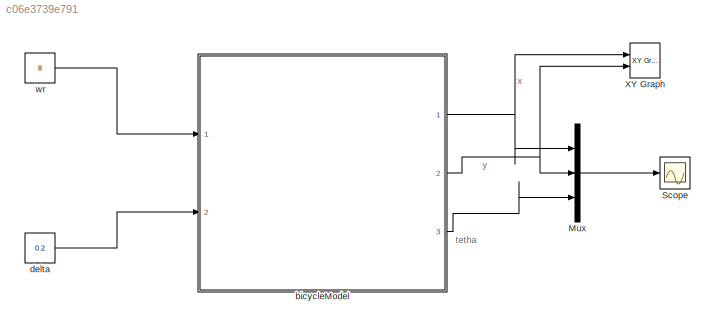
MODEL slx_c06e3739e791
KIND model
CONFIG AbsTol = auto
CONFIG EnableMultiTasking = off
CONFIG FixedStep = auto
CONFIG MaxStep = auto
CONFIG MinStep = auto
CONFIG RelTol = 1e-3
CONFIG SampleTimeConstraint = Unconstrained
CONFIG Solver = VariableStepAuto
CONFIG SolverName = VariableStepAuto
CONFIG StartTime = 0.0
CONFIG StopTime = 40
BLOCK [Mux] Mux
  DisplayOption = bar
  Inputs = 3
  Ports = [3, 1]
BLOCK [Scope] Scope
  Floating = off
  NumInputPorts = 1
  Ports = [1]
  ScopeSpecificationString = Simulink.scopes.TimeScopeBlockCfg('CurrentConfiguration', extmgr.ConfigurationSet(extmgr.Configuration('Core','General UI',true),extmgr.Configuration('Core','Source UI',true),extmgr.Configuration('Sources','WiredSimulink',true),extmgr.Configuration('Visuals','Time Domain',true),extmgr.Configuration('Tools','Plot Navigation',true),extmgr.Configuration('Tools','Measurements',true)),'Version','2020a'...<+1ch>
BLOCK [Reference] XY Graph  REF=simulink/Sinks/XY Graph
  Ports = [2]
  SourceBlock = simulink/Sinks/XY Graph
  SourceProductBaseCode = SL
  SourceType = XY scope.
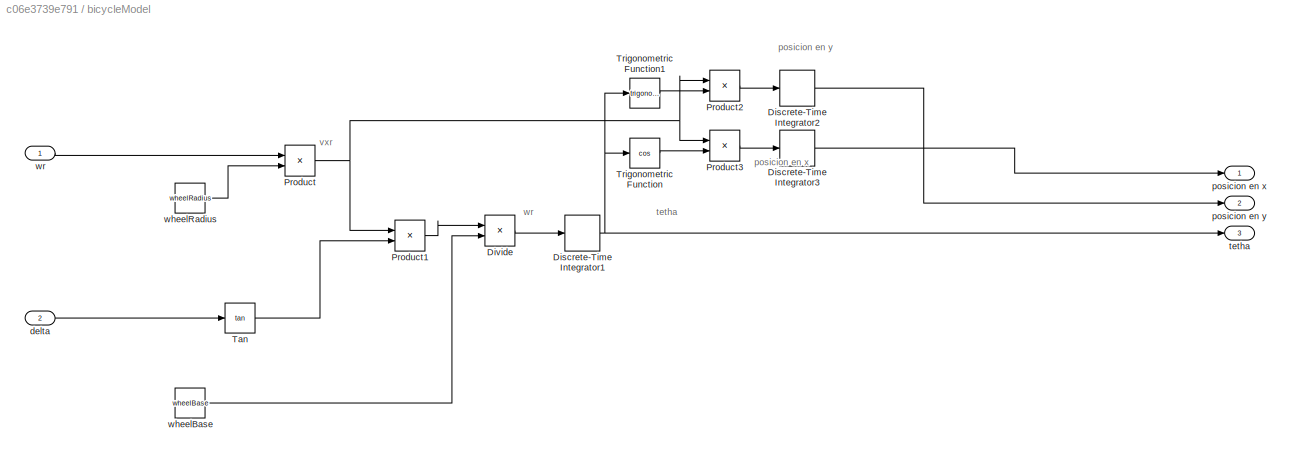
BLOCK [SubSystem] bicycleModel
  Ports = [2, 3]
  RequestExecContextInheritance = off
BLOCK [DiscreteIntegrator] bicycleModel/Discrete-Time Integrator1
  ICPrevOutput = DiscIntNeverNeededParam
  ICPrevScaledInput = DiscIntNeverNeededParam
  InitialCondition = tethaInicial
  InitialConditionSetting = Auto
  Ports = [1, 1]
  SampleTime = sampleTime
BLOCK [DiscreteIntegrator] bicycleModel/Discrete-Time Integrator2
  ICPrevOutput = DiscIntNeverNeededParam
  ICPrevScaledInput = DiscIntNeverNeededParam
  InitialCondition = inicialY
  InitialConditionSetting = Auto
  Ports = [1, 1]
  SampleTime = sampleTime
BLOCK [DiscreteIntegrator] bicycleModel/Discrete-Time Integrator3
  ICPrevOutput = DiscIntNeverNeededParam
  ICPrevScaledInput = DiscIntNeverNeededParam
  InitialCondition = inicialX
  InitialConditionSetting = Auto
  Ports = [1, 1]
  SampleTime = sampleTime
BLOCK [Product] bicycleModel/Divide
  Inputs = */
  Ports = [2, 1]
BLOCK [Product] bicycleModel/Product
  Ports = [2, 1]
BLOCK [Product] bicycleModel/Product1
  Ports = [2, 1]
BLOCK [Product] bicycleModel/Product2
  Ports = [2, 1]
BLOCK [Product] bicycleModel/Product3
  Ports = [2, 1]
BLOCK [Trigonometry] bicycleModel/Tan
  Operator = tan
  Ports = [1, 1]
BLOCK [Trigonometry] bicycleModel/Trigonometric Function
  Operator = cos
  Ports = [1, 1]
BLOCK [Trigonometry] bicycleModel/Trigonometric Function1
  Ports = [1, 1]
BLOCK [Inport] bicycleModel/delta
  Port = 2
BLOCK [Outport] bicycleModel/posicion en x
BLOCK [Outport] bicycleModel/posicion en y
  Port = 2
BLOCK [Outport] bicycleModel/tetha
  Port = 3
BLOCK [Constant] bicycleModel/wheelBase
  Value = wheelBase
BLOCK [Constant] bicycleModel/wheelRadius
  Value = wheelRadius
BLOCK [Inport] bicycleModel/wr
BLOCK [Constant] delta
  Value = 0.2
BLOCK [Constant] wr
  Value = 8
ANNOTATION (root): tetha
ANNOTATION (root): x
ANNOTATION (root): y
ANNOTATION bicycleModel: posicion en x
ANNOTATION bicycleModel: posicion en y
ANNOTATION bicycleModel: tetha
ANNOTATION bicycleModel: vxr
ANNOTATION bicycleModel: wr
LINE Mux:1 -> Scope:1
NET bicycleModel/Discrete-Time Integrator1:1 -> bicycleModel/Trigonometric Function1:1, bicycleModel/Trigonometric Function:1, bicycleModel/tetha:1
LINE bicycleModel/Discrete-Time Integrator2:1 -> bicycleModel/posicion en y:1
LINE bicycleModel/Discrete-Time Integrator3:1 -> bicycleModel/posicion en x:1
LINE bicycleModel/Divide:1 -> bicycleModel/Discrete-Time Integrator1:1
LINE bicycleModel/Product1:1 -> bicycleModel/Divide:1
LINE bicycleModel/Product2:1 -> bicycleModel/Discrete-Time Integrator2:1
LINE bicycleModel/Product3:1 -> bicycleModel/Discrete-Time Integrator3:1
NET bicycleModel/Product:1 -> bicycleModel/Product1:1, bicycleModel/Product2:1, bicycleModel/Product3:1
LINE bicycleModel/Tan:1 -> bicycleModel/Product1:2
LINE bicycleModel/Trigonometric Function1:1 -> bicycleModel/Product2:2
LINE bicycleModel/Trigonometric Function:1 -> bicycleModel/Product3:2
LINE bicycleModel/delta:1 -> bicycleModel/Tan:1
LINE bicycleModel/wheelBase:1 -> bicycleModel/Divide:2
LINE bicycleModel/wheelRadius:1 -> bicycleModel/Product:2
LINE bicycleModel/wr:1 -> bicycleModel/Product:1
NET bicycleModel:1 -> Mux:1, XY Graph:1
NET bicycleModel:2 -> Mux:2, XY Graph:2
LINE bicycleModel:3 -> Mux:3
LINE delta:1 -> bicycleModel:2
LINE wr:1 -> bicycleModel:1
note: NET lines group one-source signal fan-out (src -> all destinations, sorted); 1:1 wires keep LINE
